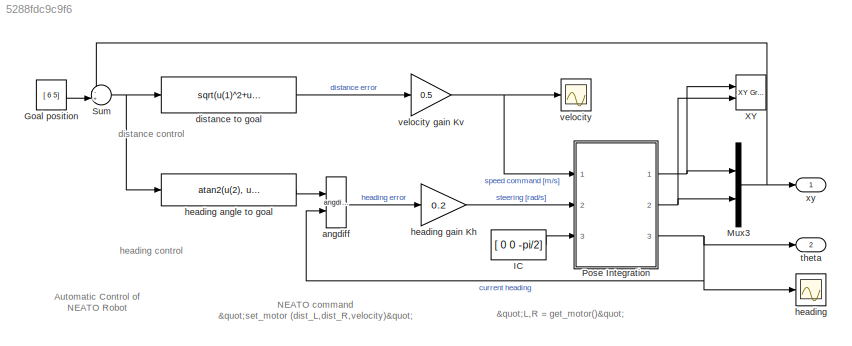
MODEL slx_5288fdc9c9f6
KIND model
CONFIG AbsTol = auto
CONFIG EnableMultiTasking = on
CONFIG FixedStep = auto
CONFIG MaxStep = auto
CONFIG MinStep = auto
CONFIG RelTol = 1e-3
CONFIG SampleTimeConstraint = Unconstrained
CONFIG Solver = ode45
CONFIG SolverName = ode45
CONFIG StartTime = 0.0
CONFIG StopTime = 60
BLOCK [Constant] Goal position
  Value = [ 6 5]
BLOCK [Constant] IC
  Value = [ 0 0 -pi/2]
BLOCK [Mux] Mux3
  DisplayOption = bar
  Inputs = 2
  Ports = [2, 1]
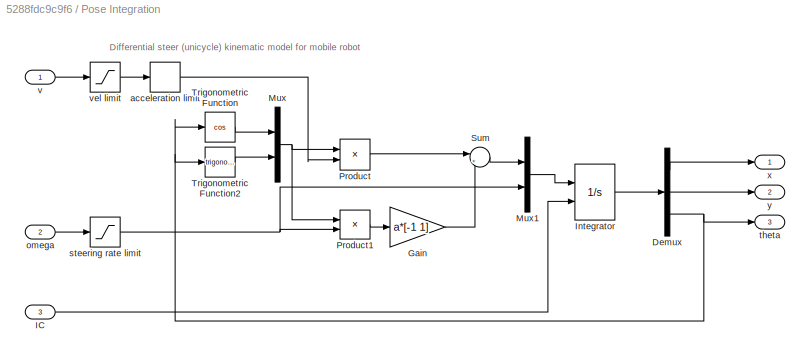
BLOCK [SubSystem] Pose Integration
  AncestorBlock = roblocks/Vehicles/Unicycle
  Ports = [3, 3]
  RequestExecContextInheritance = off
  Variant = off
BLOCK [Demux] Pose Integration/Demux
  DisplayOption = bar
  Outputs = 3
  Ports = [1, 3]
BLOCK [Gain] Pose Integration/Gain
  Gain = a*[-1 1]
  OutDataTypeStr = Inherit: Inherit via internal rule
  ParamDataTypeStr = Inherit: Inherit via internal rule
  SaturateOnIntegerOverflow = off
BLOCK [Inport] Pose Integration/IC
  IconDisplay = Port number
  Port = 3
BLOCK [Integrator] Pose Integration/Integrator
  InitialCondition = [0 0 -pi]
  InitialConditionSource = external
  Ports = [2, 1]
BLOCK [Mux] Pose Integration/Mux
  DisplayOption = bar
  Inputs = 2
  Ports = [2, 1]
BLOCK [Mux] Pose Integration/Mux1
  DisplayOption = bar
  Inputs = 2
  Ports = [2, 1]
BLOCK [Product] Pose Integration/Product
  InputSameDT = off
  OutDataTypeStr = Inherit: Inherit via internal rule
  Ports = [2, 1]
  SaturateOnIntegerOverflow = off
BLOCK [Product] Pose Integration/Product1
  InputSameDT = off
  OutDataTypeStr = Inherit: Inherit via internal rule
  Ports = [2, 1]
  SaturateOnIntegerOverflow = off
BLOCK [Sum] Pose Integration/Sum
  IconShape = round
  InputSameDT = off
  Inputs = |++
  OutDataTypeStr = Inherit: Inherit via internal rule
  Ports = [2, 1]
  SaturateOnIntegerOverflow = off
BLOCK [Trigonometry] Pose Integration/Trigonometric Function
  Operator = cos
  Ports = [1, 1]
BLOCK [Trigonometry] Pose Integration/Trigonometric Function2
  Ports = [1, 1]
BLOCK [RateLimiter] Pose Integration/acceleration limit
  FallingSlewLimit = -accel
  RisingSlewLimit = accel
  SampleTimeMode = inherited
BLOCK [Inport] Pose Integration/omega
  IconDisplay = Port number
  Port = 2
BLOCK [Saturate] Pose Integration/steering rate limit
  InputPortMap = u0
  LowerLimit = -alim
  Ports = [1, 1]
  UpperLimit = alim
BLOCK [Outport] Pose Integration/theta
  IconDisplay = Port number
  Port = 3
BLOCK [Inport] Pose Integration/v
  IconDisplay = Port number
BLOCK [Saturate] Pose Integration/vel limit
  InputPortMap = u0
  LowerLimit = -vlim
  Ports = [1, 1]
  UpperLimit = vlim
BLOCK [Outport] Pose Integration/x
  IconDisplay = Port number
BLOCK [Outport] Pose Integration/y
  IconDisplay = Port number
  Port = 2
BLOCK [Sum] Sum
  IconShape = round
  InputSameDT = off
  Inputs = -+|
  OutDataTypeStr = Inherit: Inherit via internal rule
  Ports = [2, 1]
  SaturateOnIntegerOverflow = off
BLOCK [Reference] XY  REF=simulink/Sinks/XY Graph
  Ports = [2]
  SourceBlock = simulink/Sinks/XY Graph
  SourceType = XY scope.
BLOCK [Reference] angdiff  REF=roblocks/Toolbox/angdiff  (lib defined in mdl_2a292b13c81b, mdl_69400f8cfe22, +12 more)
  Ports = [2, 1]
  SourceBlock = roblocks/Toolbox/angdiff
BLOCK [Fcn] distance to goal
  Expr = sqrt(u(1)^2+u(2)^2)
BLOCK [Scope] heading
  NumInputPorts = 1
  Ports = [1]
  ScopeSpecificationString = Simulink.scopes.TimeScopeBlockCfg('CurrentConfiguration', extmgr.ConfigurationSet(extmgr.Configuration('Core','General UI',true),extmgr.Configuration('Core','Source UI',true),extmgr.Configuration('Sources','WiredSimulink',true,'DataLoggingSaveFormat','StructureWithTime','DataLoggingLimitDataPoints',true,'DataLoggingDecimation','1','DataLoggingDecimateData',true),extmgr.Configuration('Visuals','Tim...<+1678ch>
BLOCK [Fcn] heading angle to goal
  Expr = atan2(u(2), u(1))
BLOCK [Gain] heading gain Kh
  Gain = 0.2
  OutDataTypeStr = Inherit: Inherit via internal rule
  ParamDataTypeStr = Inherit: Inherit via internal rule
  SaturateOnIntegerOverflow = off
BLOCK [Outport] theta 
  IconDisplay = Port number
  Port = 2
BLOCK [Scope] velocity
  NumInputPorts = 1
  Ports = [1]
  ScopeSpecificationString = Simulink.scopes.TimeScopeBlockCfg('CurrentConfiguration', extmgr.ConfigurationSet(extmgr.Configuration('Core','General UI',true),extmgr.Configuration('Core','Source UI',true),extmgr.Configuration('Sources','WiredSimulink',true,'DataLoggingVariableName','ScopeData1','DataLoggingSaveFormat','StructureWithTime','DataLoggingLimitDataPoints',true,'DataLoggingDecimation','1'),extmgr.Configuration('Visua...<+1683ch>
BLOCK [Gain] velocity gain Kv
  Gain = 0.5
  OutDataTypeStr = Inherit: Inherit via internal rule
  ParamDataTypeStr = Inherit: Inherit via internal rule
  SaturateOnIntegerOverflow = off
BLOCK [Outport] xy
  IconDisplay = Port number
ANNOTATION (root): "L,R = get_motor()"
ANNOTATION (root): NEATO command "set_motor (dist_L,dist_R,velocity)"
ANNOTATION (root): Automatic Control of NEATO Robot
ANNOTATION (root): distance control
ANNOTATION (root): heading control
ANNOTATION Pose Integration: Differential steer (unicycle) kinematic model for mobile robot
LINE Goal position:1 -> Sum:2
LINE IC:1 -> Pose Integration:3
NET Mux3:1 -> Sum:1, xy:1
NET Pose Integration:1 -> Mux3:1, XY:1
NET Pose Integration:2 -> Mux3:2, XY:2
NET Pose Integration:3 -> angdiff:2, heading:1, theta :1
NET Sum:1 -> distance to goal:1, heading angle to goal:1
LINE angdiff:1 -> heading gain Kh:1
LINE distance to goal:1 -> velocity gain Kv:1
LINE heading angle to goal:1 -> angdiff:1
LINE heading gain Kh:1 -> Pose Integration:2
NET velocity gain Kv:1 -> Pose Integration:1, velocity:1
note: NET lines group one-source signal fan-out (src -> all destinations, sorted); 1:1 wires keep LINE
